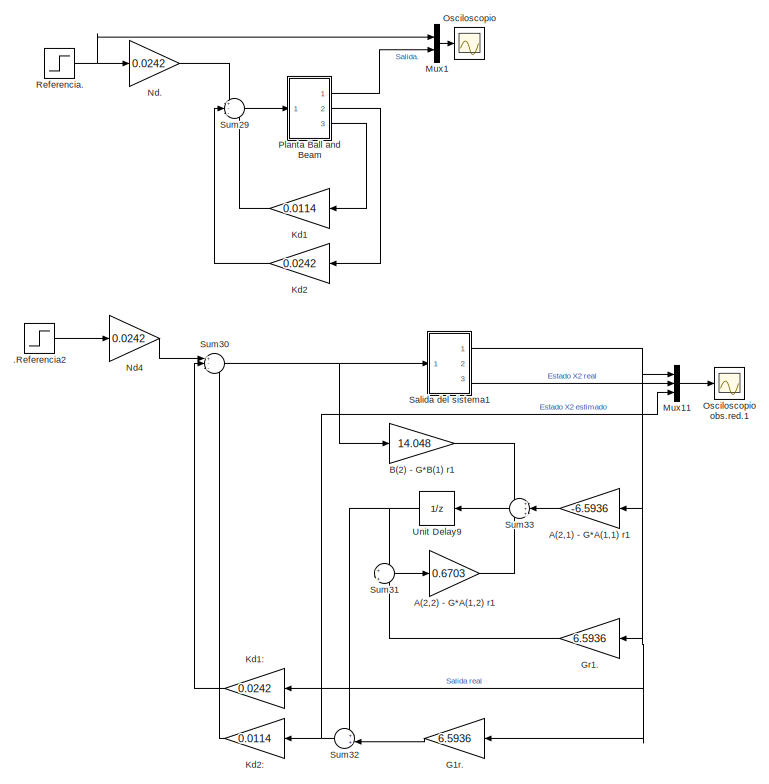
[diagram: root canvas - part 1/5, top center region]
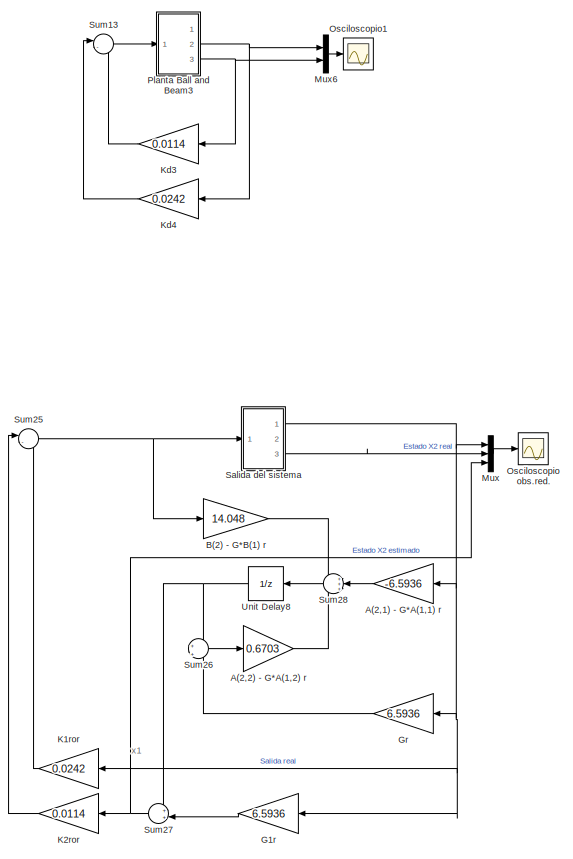
[diagram: root canvas - part 2/5, top left region]
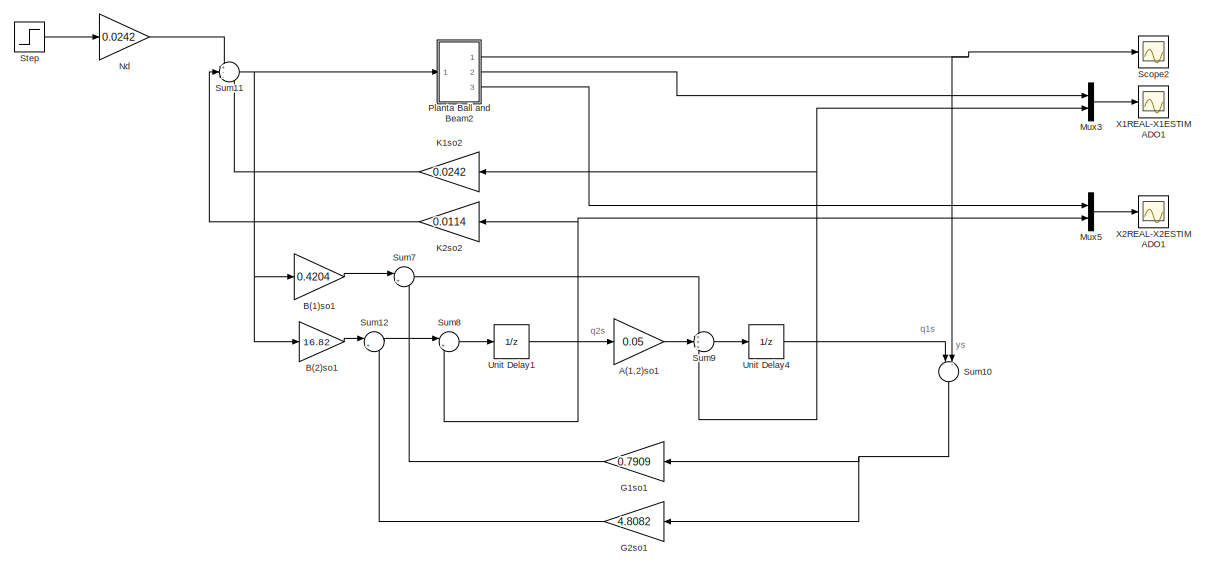
[diagram: root canvas - part 3/5, middle right region]
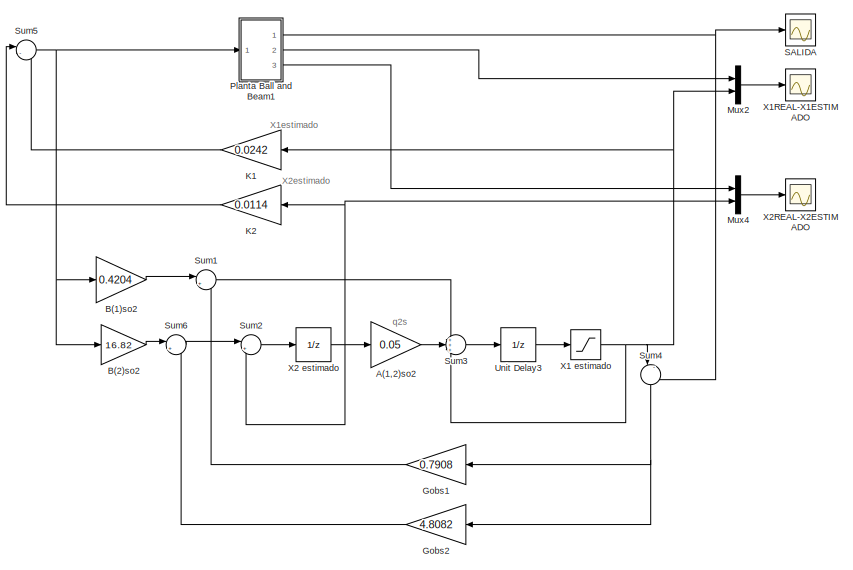
[diagram: root canvas - part 4/5, middle left region]
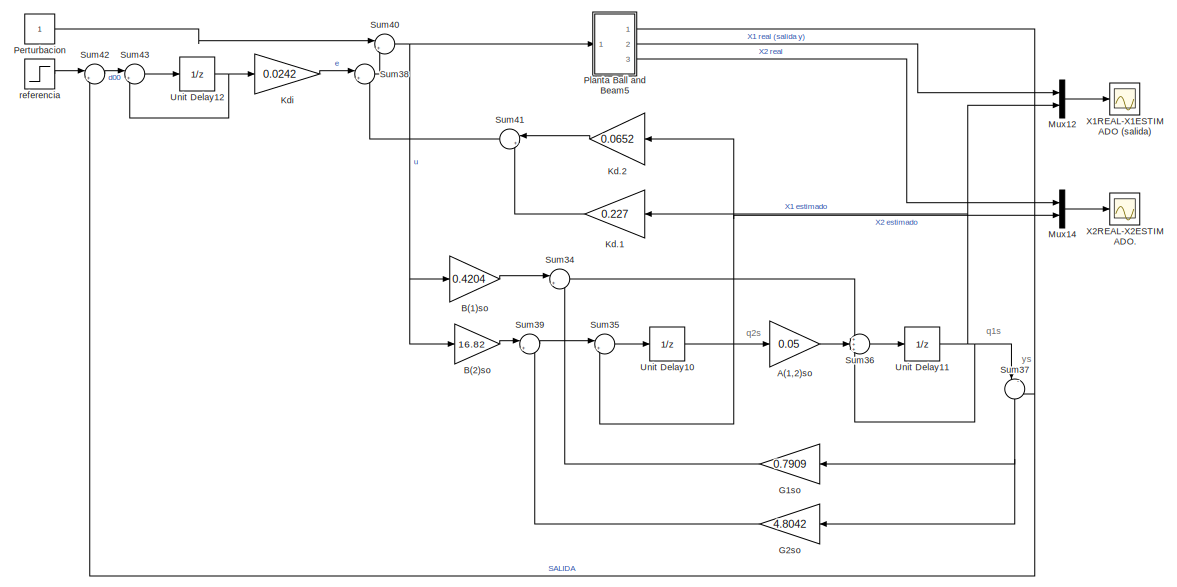
[diagram: root canvas - part 5/5, bottom right region]
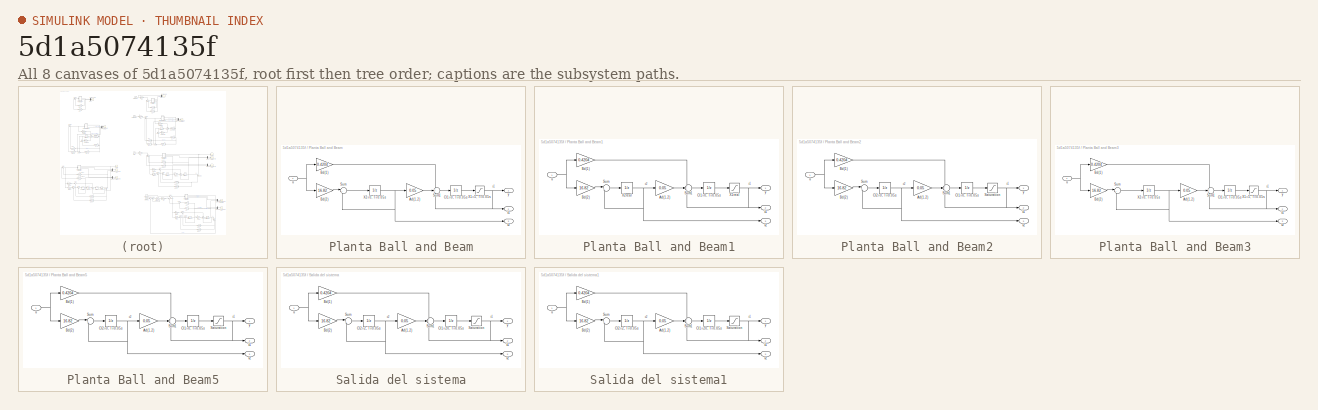
[diagram: thumbnail index - all 8 canvases of the model, root first then tree order]
MODEL slx_5d1a5074135f
KIND model
BLOCK [Step] .Referencia2
  After = 20
  Time = 0
BLOCK [Gain] A(1,2)so
  Gain = 0.05
  OutDataTypeStr = Inherit: Inherit via internal rule
  ParamDataTypeStr = Inherit: Inherit via internal rule
  SaturateOnIntegerOverflow = off
BLOCK [Gain] A(1,2)so1
  Gain = 0.05
  OutDataTypeStr = Inherit: Inherit via internal rule
  ParamDataTypeStr = Inherit: Inherit via internal rule
  SaturateOnIntegerOverflow = off
BLOCK [Gain] A(1,2)so2
  Gain = 0.05
  OutDataTypeStr = Inherit: Inherit via internal rule
  ParamDataTypeStr = Inherit: Inherit via internal rule
  SaturateOnIntegerOverflow = off
BLOCK [Gain] A(2,1) - G*A(1,1) r
  Gain = -6.5936
  OutDataTypeStr = Inherit: Inherit via internal rule
  ParamDataTypeStr = Inherit: Inherit via internal rule
  SaturateOnIntegerOverflow = off
BLOCK [Gain] A(2,1) - G*A(1,1) r1
  Gain = -6.5936
  OutDataTypeStr = Inherit: Inherit via internal rule
  ParamDataTypeStr = Inherit: Inherit via internal rule
  SaturateOnIntegerOverflow = off
BLOCK [Gain] A(2,2) - G*A(1,2) r
  Gain = 0.6703
  OutDataTypeStr = Inherit: Inherit via internal rule
  ParamDataTypeStr = Inherit: Inherit via internal rule
  SaturateOnIntegerOverflow = off
BLOCK [Gain] A(2,2) - G*A(1,2) r1
  Gain = 0.6703
  OutDataTypeStr = Inherit: Inherit via internal rule
  ParamDataTypeStr = Inherit: Inherit via internal rule
  SaturateOnIntegerOverflow = off
BLOCK [Gain] B(1)so
  Gain = 0.4204
  OutDataTypeStr = Inherit: Inherit via internal rule
  ParamDataTypeStr = Inherit: Inherit via internal rule
  SaturateOnIntegerOverflow = off
BLOCK [Gain] B(1)so1
  Gain = 0.4204
  OutDataTypeStr = Inherit: Inherit via internal rule
  ParamDataTypeStr = Inherit: Inherit via internal rule
  SaturateOnIntegerOverflow = off
BLOCK [Gain] B(1)so2
  Gain = 0.4204
  OutDataTypeStr = Inherit: Inherit via internal rule
  ParamDataTypeStr = Inherit: Inherit via internal rule
  SaturateOnIntegerOverflow = off
BLOCK [Gain] B(2) - G*B(1) r
  Gain = 14.048
  OutDataTypeStr = Inherit: Inherit via internal rule
  ParamDataTypeStr = Inherit: Inherit via internal rule
  SaturateOnIntegerOverflow = off
BLOCK [Gain] B(2) - G*B(1) r1
  Gain = 14.048
  OutDataTypeStr = Inherit: Inherit via internal rule
  ParamDataTypeStr = Inherit: Inherit via internal rule
  SaturateOnIntegerOverflow = off
BLOCK [Gain] B(2)so
  Gain = 16.82
  OutDataTypeStr = Inherit: Inherit via internal rule
  ParamDataTypeStr = Inherit: Inherit via internal rule
  SaturateOnIntegerOverflow = off
BLOCK [Gain] B(2)so1
  Gain = 16.82
  OutDataTypeStr = Inherit: Inherit via internal rule
  ParamDataTypeStr = Inherit: Inherit via internal rule
  SaturateOnIntegerOverflow = off
BLOCK [Gain] B(2)so2
  Gain = 16.82
  OutDataTypeStr = Inherit: Inherit via internal rule
  ParamDataTypeStr = Inherit: Inherit via internal rule
  SaturateOnIntegerOverflow = off
BLOCK [Gain] G1r
  Gain = 6.5936
  OutDataTypeStr = Inherit: Inherit via internal rule
  ParamDataTypeStr = Inherit: Inherit via internal rule
  SaturateOnIntegerOverflow = off
BLOCK [Gain] G1r.
  Gain = 6.5936
  OutDataTypeStr = Inherit: Inherit via internal rule
  ParamDataTypeStr = Inherit: Inherit via internal rule
  SaturateOnIntegerOverflow = off
BLOCK [Gain] G1so
  Gain = 0.7909
  OutDataTypeStr = Inherit: Inherit via internal rule
  ParamDataTypeStr = Inherit: Inherit via internal rule
  SaturateOnIntegerOverflow = off
BLOCK [Gain] G1so1
  Gain = 0.7909
  OutDataTypeStr = Inherit: Inherit via internal rule
  ParamDataTypeStr = Inherit: Inherit via internal rule
  SaturateOnIntegerOverflow = off
BLOCK [Gain] G2so
  Gain = 4.8042
  OutDataTypeStr = Inherit: Inherit via internal rule
  ParamDataTypeStr = Inherit: Inherit via internal rule
  SaturateOnIntegerOverflow = off
BLOCK [Gain] G2so1
  Gain = 4.8082
  OutDataTypeStr = Inherit: Inherit via internal rule
  ParamDataTypeStr = Inherit: Inherit via internal rule
  SaturateOnIntegerOverflow = off
BLOCK [Gain] Gobs1
  Gain = 0.7908
  OutDataTypeStr = Inherit: Inherit via internal rule
  ParamDataTypeStr = Inherit: Inherit via internal rule
  SaturateOnIntegerOverflow = off
BLOCK [Gain] Gobs2
  Gain = 4.8082
  OutDataTypeStr = Inherit: Inherit via internal rule
  ParamDataTypeStr = Inherit: Inherit via internal rule
  SaturateOnIntegerOverflow = off
BLOCK [Gain] Gr
  Gain = 6.5936
  OutDataTypeStr = Inherit: Inherit via internal rule
  ParamDataTypeStr = Inherit: Inherit via internal rule
  SaturateOnIntegerOverflow = off
BLOCK [Gain] Gr1.
  Gain = 6.5936
  OutDataTypeStr = Inherit: Inherit via internal rule
  ParamDataTypeStr = Inherit: Inherit via internal rule
  SaturateOnIntegerOverflow = off
BLOCK [Gain] K1
  Gain = 0.0242
  OutDataTypeStr = Inherit: Inherit via internal rule
  ParamDataTypeStr = Inherit: Inherit via internal rule
  SaturateOnIntegerOverflow = off
BLOCK [Gain] K1ror
  Gain = 0.0242
  OutDataTypeStr = Inherit: Inherit via internal rule
  ParamDataTypeStr = Inherit: Inherit via internal rule
  SaturateOnIntegerOverflow = off
BLOCK [Gain] K1so2
  Gain = 0.0242
  OutDataTypeStr = Inherit: Inherit via internal rule
  ParamDataTypeStr = Inherit: Inherit via internal rule
  SaturateOnIntegerOverflow = off
BLOCK [Gain] K2
  Gain = 0.0114
  OutDataTypeStr = Inherit: Inherit via internal rule
  ParamDataTypeStr = Inherit: Inherit via internal rule
  SaturateOnIntegerOverflow = off
BLOCK [Gain] K2ror
  Gain = 0.0114
  OutDataTypeStr = Inherit: Inherit via internal rule
  ParamDataTypeStr = Inherit: Inherit via internal rule
  SaturateOnIntegerOverflow = off
BLOCK [Gain] K2so2
  Gain = 0.0114
  OutDataTypeStr = Inherit: Inherit via internal rule
  ParamDataTypeStr = Inherit: Inherit via internal rule
  SaturateOnIntegerOverflow = off
BLOCK [Gain] Kd.1
  Gain = 0.227
  OutDataTypeStr = Inherit: Inherit via internal rule
  ParamDataTypeStr = Inherit: Inherit via internal rule
  SaturateOnIntegerOverflow = off
BLOCK [Gain] Kd.2
  Gain = 0.0652
  OutDataTypeStr = Inherit: Inherit via internal rule
  ParamDataTypeStr = Inherit: Inherit via internal rule
  SaturateOnIntegerOverflow = off
BLOCK [Gain] Kd1
  Gain = 0.0114
  OutDataTypeStr = Inherit: Inherit via internal rule
  ParamDataTypeStr = Inherit: Inherit via internal rule
  SaturateOnIntegerOverflow = off
BLOCK [Gain] Kd1:
  Gain = 0.0242
  OutDataTypeStr = Inherit: Inherit via internal rule
  ParamDataTypeStr = Inherit: Inherit via internal rule
  SaturateOnIntegerOverflow = off
BLOCK [Gain] Kd2
  Gain = 0.0242
  OutDataTypeStr = Inherit: Inherit via internal rule
  ParamDataTypeStr = Inherit: Inherit via internal rule
  SaturateOnIntegerOverflow = off
BLOCK [Gain] Kd2:
  Gain = 0.0114
  OutDataTypeStr = Inherit: Inherit via internal rule
  ParamDataTypeStr = Inherit: Inherit via internal rule
  SaturateOnIntegerOverflow = off
BLOCK [Gain] Kd3
  Gain = 0.0114
  OutDataTypeStr = Inherit: Inherit via internal rule
  ParamDataTypeStr = Inherit: Inherit via internal rule
  SaturateOnIntegerOverflow = off
BLOCK [Gain] Kd4
  Gain = 0.0242
  OutDataTypeStr = Inherit: Inherit via internal rule
  ParamDataTypeStr = Inherit: Inherit via internal rule
  SaturateOnIntegerOverflow = off
BLOCK [Gain] Kdi
  Gain = 0.0242
  OutDataTypeStr = Inherit: Inherit via internal rule
  ParamDataTypeStr = Inherit: Inherit via internal rule
  SaturateOnIntegerOverflow = off
BLOCK [Mux] Mux
  DisplayOption = bar
  Inputs = 3
  Ports = [3, 1]
BLOCK [Mux] Mux1
  DisplayOption = bar
  Inputs = 2
  Ports = [2, 1]
BLOCK [Mux] Mux11
  DisplayOption = bar
  Inputs = 3
  Ports = [3, 1]
BLOCK [Mux] Mux12
  DisplayOption = bar
  Inputs = 2
  Ports = [2, 1]
BLOCK [Mux] Mux14
  DisplayOption = bar
  Inputs = 2
  Ports = [2, 1]
BLOCK [Mux] Mux2
  DisplayOption = bar
  Inputs = 2
  Ports = [2, 1]
BLOCK [Mux] Mux3
  DisplayOption = bar
  Inputs = 2
  Ports = [2, 1]
BLOCK [Mux] Mux4
  DisplayOption = bar
  Inputs = 2
  Ports = [2, 1]
BLOCK [Mux] Mux5
  DisplayOption = bar
  Inputs = 2
  Ports = [2, 1]
BLOCK [Mux] Mux6
  DisplayOption = bar
  Inputs = 2
  Ports = [2, 1]
BLOCK [Gain] Nd
  Gain = 0.0242
  OutDataTypeStr = Inherit: Inherit via internal rule
  ParamDataTypeStr = Inherit: Inherit via internal rule
  SaturateOnIntegerOverflow = off
BLOCK [Gain] Nd.
  Gain = 0.0242
  OutDataTypeStr = Inherit: Inherit via internal rule
  ParamDataTypeStr = Inherit: Inherit via internal rule
  SaturateOnIntegerOverflow = off
BLOCK [Gain] Nd4
  Gain = 0.0242
  OutDataTypeStr = Inherit: Inherit via internal rule
  ParamDataTypeStr = Inherit: Inherit via internal rule
  SaturateOnIntegerOverflow = off
BLOCK [Scope] Osciloscopio
  DataFormat = StructureWithTime
  Floating = off
  LegendLocations = 0.6944     0.44813    0.070625    0.044444
  NumInputPorts = 1
  Ports = [1]
  SampleTime = 0
  SaveName = ScopeData2
  ShowLegends = on
  YMax = 25
  YMin = -30
BLOCK [Scope] Osciloscopio obs.red.
  DataFormat = StructureWithTime
  Floating = off
  LegendLocations = 0.6807     0.74452       0.095    0.063786
  NumInputPorts = 1
  Ports = [1]
  SampleTime = 0
  SaveName = ScopeData14
  ShowLegends = on
BLOCK [Scope] Osciloscopio obs.red.1
  DataFormat = StructureWithTime
  Floating = off
  NumInputPorts = 1
  Ports = [1]
  SampleTime = 0
  ShowLegends = on
BLOCK [Scope] Osciloscopio1
  DataFormat = StructureWithTime
  Floating = off
  LegendLocations = 0.6944     0.44813    0.070625    0.044444
  NumInputPorts = 1
  Ports = [1]
  SampleTime = 0
  SaveName = ScopeData8
  ShowLegends = on
  YMax = 25
  YMin = -30
BLOCK [Constant] Perturbacion
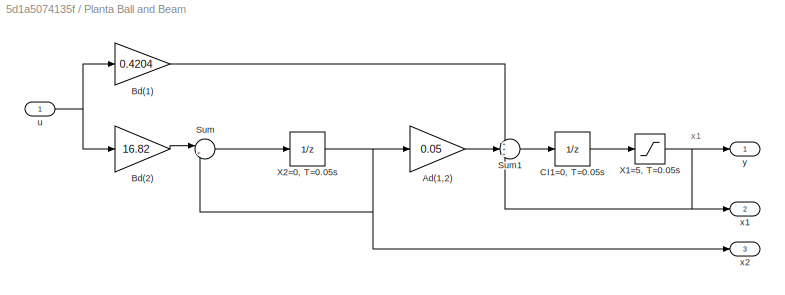
BLOCK [SubSystem] Planta Ball and Beam
  FunctionWithSeparateData = off
  MaskHideContents = off
  MinAlgLoopOccurrences = off
  Opaque = off
  Ports = [1, 3]
  PropExecContextOutsideSubsystem = off
  RTWSystemCode = Auto
  RequestExecContextInheritance = off
BLOCK [Gain] Planta Ball and Beam/Ad(1,2)
  Gain = 0.05
  OutDataTypeStr = Inherit: Inherit via internal rule
  ParamDataTypeStr = Inherit: Inherit via internal rule
  SaturateOnIntegerOverflow = off
BLOCK [Gain] Planta Ball and Beam/Bd(1)
  Gain = 0.4204
  OutDataTypeStr = Inherit: Inherit via internal rule
  ParamDataTypeStr = Inherit: Inherit via internal rule
  SaturateOnIntegerOverflow = off
BLOCK [Gain] Planta Ball and Beam/Bd(2)
  Gain = 16.82
  OutDataTypeStr = Inherit: Inherit via internal rule
  ParamDataTypeStr = Inherit: Inherit via internal rule
  SaturateOnIntegerOverflow = off
BLOCK [UnitDelay] Planta Ball and Beam/CI1=0, T=0.05s
  InitialCondition = 5
  InputProcessing = Elements as channels (sample based)
  SampleTime = 0.05
BLOCK [Sum] Planta Ball and Beam/Sum
  IconShape = round
  InputSameDT = off
  Inputs = |++
  OutDataTypeStr = Inherit: Inherit via internal rule
  Ports = [2, 1]
  SaturateOnIntegerOverflow = off
BLOCK [Sum] Planta Ball and Beam/Sum1
  IconShape = round
  InputSameDT = off
  Inputs = +++
  OutDataTypeStr = Inherit: Inherit via internal rule
  Ports = [3, 1]
  SaturateOnIntegerOverflow = off
BLOCK [Saturate] Planta Ball and Beam/X1=5, T=0.05s
  InputPortMap = u0
  LowerLimit = 5
  Ports = [1, 1]
  UpperLimit = 35
BLOCK [UnitDelay] Planta Ball and Beam/X2=0, T=0.05s
  InputProcessing = Elements as channels (sample based)
  SampleTime = 0.05
BLOCK [Inport] Planta Ball and Beam/u
  IconDisplay = Port number
BLOCK [Outport] Planta Ball and Beam/x1
  IconDisplay = Port number
  Port = 2
BLOCK [Outport] Planta Ball and Beam/x2
  IconDisplay = Port number
  Port = 3
BLOCK [Outport] Planta Ball and Beam/y
  IconDisplay = Port number
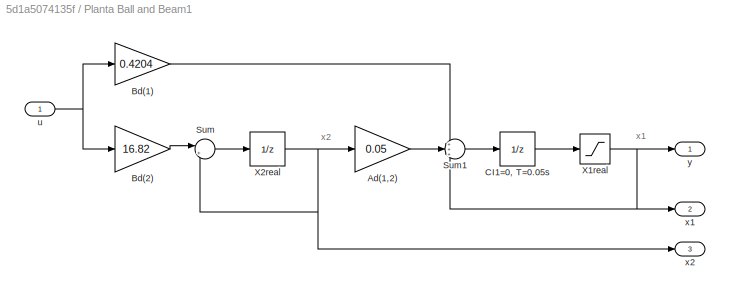
BLOCK [SubSystem] Planta Ball and Beam1
  FunctionWithSeparateData = off
  MaskHideContents = off
  MinAlgLoopOccurrences = off
  Opaque = off
  Ports = [1, 3]
  PropExecContextOutsideSubsystem = off
  RTWSystemCode = Auto
  RequestExecContextInheritance = off
BLOCK [Gain] Planta Ball and Beam1/Ad(1,2)
  Gain = 0.05
  OutDataTypeStr = Inherit: Inherit via internal rule
  ParamDataTypeStr = Inherit: Inherit via internal rule
  SaturateOnIntegerOverflow = off
BLOCK [Gain] Planta Ball and Beam1/Bd(1)
  Gain = 0.4204
  OutDataTypeStr = Inherit: Inherit via internal rule
  ParamDataTypeStr = Inherit: Inherit via internal rule
  SaturateOnIntegerOverflow = off
BLOCK [Gain] Planta Ball and Beam1/Bd(2)
  Gain = 16.82
  OutDataTypeStr = Inherit: Inherit via internal rule
  ParamDataTypeStr = Inherit: Inherit via internal rule
  SaturateOnIntegerOverflow = off
BLOCK [UnitDelay] Planta Ball and Beam1/CI1=0, T=0.05s
  InitialCondition = 5
  InputProcessing = Elements as channels (sample based)
  SampleTime = 0.05
BLOCK [Sum] Planta Ball and Beam1/Sum
  IconShape = round
  InputSameDT = off
  Inputs = |++
  OutDataTypeStr = Inherit: Inherit via internal rule
  Ports = [2, 1]
  SaturateOnIntegerOverflow = off
BLOCK [Sum] Planta Ball and Beam1/Sum1
  IconShape = round
  InputSameDT = off
  Inputs = +++
  OutDataTypeStr = Inherit: Inherit via internal rule
  Ports = [3, 1]
  SaturateOnIntegerOverflow = off
BLOCK [Saturate] Planta Ball and Beam1/X1real
  InputPortMap = u0
  LowerLimit = 5
  Ports = [1, 1]
  UpperLimit = 35
BLOCK [UnitDelay] Planta Ball and Beam1/X2real
  InitialCondition = 10
  InputProcessing = Elements as channels (sample based)
  SampleTime = 0.05
BLOCK [Inport] Planta Ball and Beam1/u
  IconDisplay = Port number
BLOCK [Outport] Planta Ball and Beam1/x1
  IconDisplay = Port number
  Port = 2
BLOCK [Outport] Planta Ball and Beam1/x2
  IconDisplay = Port number
  Port = 3
BLOCK [Outport] Planta Ball and Beam1/y
  IconDisplay = Port number
BLOCK [SubSystem] Planta Ball and Beam2
  FunctionWithSeparateData = off
  MaskHideContents = off
  MinAlgLoopOccurrences = off
  Opaque = off
  Ports = [1, 3]
  PropExecContextOutsideSubsystem = off
  RTWSystemCode = Auto
  RequestExecContextInheritance = off
BLOCK [Gain] Planta Ball and Beam2/Ad(1,2)
  Gain = 0.05
  OutDataTypeStr = Inherit: Inherit via internal rule
  ParamDataTypeStr = Inherit: Inherit via internal rule
  SaturateOnIntegerOverflow = off
BLOCK [Gain] Planta Ball and Beam2/Bd(1)
  Gain = 0.4204
  OutDataTypeStr = Inherit: Inherit via internal rule
  ParamDataTypeStr = Inherit: Inherit via internal rule
  SaturateOnIntegerOverflow = off
BLOCK [Gain] Planta Ball and Beam2/Bd(2)
  Gain = 16.82
  OutDataTypeStr = Inherit: Inherit via internal rule
  ParamDataTypeStr = Inherit: Inherit via internal rule
  SaturateOnIntegerOverflow = off
BLOCK [UnitDelay] Planta Ball and Beam2/CI1=0, T=0.05s
  InitialCondition = 5
  InputProcessing = Elements as channels (sample based)
  SampleTime = 0.05
BLOCK [UnitDelay] Planta Ball and Beam2/CI2=0, T=0.05s
  InputProcessing = Elements as channels (sample based)
  SampleTime = 0.05
BLOCK [Saturate] Planta Ball and Beam2/Saturation
  InputPortMap = u0
  LowerLimit = 5
  Ports = [1, 1]
  UpperLimit = 35
BLOCK [Sum] Planta Ball and Beam2/Sum
  IconShape = round
  InputSameDT = off
  Inputs = |++
  OutDataTypeStr = Inherit: Inherit via internal rule
  Ports = [2, 1]
  SaturateOnIntegerOverflow = off
BLOCK [Sum] Planta Ball and Beam2/Sum1
  IconShape = round
  InputSameDT = off
  Inputs = +++
  OutDataTypeStr = Inherit: Inherit via internal rule
  Ports = [3, 1]
  SaturateOnIntegerOverflow = off
BLOCK [Inport] Planta Ball and Beam2/u
  IconDisplay = Port number
BLOCK [Outport] Planta Ball and Beam2/x1
  IconDisplay = Port number
  Port = 2
BLOCK [Outport] Planta Ball and Beam2/x2
  IconDisplay = Port number
  Port = 3
BLOCK [Outport] Planta Ball and Beam2/y
  IconDisplay = Port number
BLOCK [SubSystem] Planta Ball and Beam3
  FunctionWithSeparateData = off
  MaskHideContents = off
  MinAlgLoopOccurrences = off
  Opaque = off
  Ports = [1, 3]
  PropExecContextOutsideSubsystem = off
  RTWSystemCode = Auto
  RequestExecContextInheritance = off
BLOCK [Gain] Planta Ball and Beam3/Ad(1,2)
  Gain = 0.05
  OutDataTypeStr = Inherit: Inherit via internal rule
  ParamDataTypeStr = Inherit: Inherit via internal rule
  SaturateOnIntegerOverflow = off
BLOCK [Gain] Planta Ball and Beam3/Bd(1)
  Gain = 0.4204
  OutDataTypeStr = Inherit: Inherit via internal rule
  ParamDataTypeStr = Inherit: Inherit via internal rule
  SaturateOnIntegerOverflow = off
BLOCK [Gain] Planta Ball and Beam3/Bd(2)
  Gain = 16.82
  OutDataTypeStr = Inherit: Inherit via internal rule
  ParamDataTypeStr = Inherit: Inherit via internal rule
  SaturateOnIntegerOverflow = off
BLOCK [UnitDelay] Planta Ball and Beam3/CI1=0, T=0.05s
  InitialCondition = 5
  InputProcessing = Elements as channels (sample based)
  SampleTime = 0.05
BLOCK [Sum] Planta Ball and Beam3/Sum
  IconShape = round
  InputSameDT = off
  Inputs = |++
  OutDataTypeStr = Inherit: Inherit via internal rule
  Ports = [2, 1]
  SaturateOnIntegerOverflow = off
BLOCK [Sum] Planta Ball and Beam3/Sum1
  IconShape = round
  InputSameDT = off
  Inputs = +++
  OutDataTypeStr = Inherit: Inherit via internal rule
  Ports = [3, 1]
  SaturateOnIntegerOverflow = off
BLOCK [Saturate] Planta Ball and Beam3/X1=5, T=0.05s
  InputPortMap = u0
  LowerLimit = 5
  Ports = [1, 1]
  UpperLimit = 35
BLOCK [UnitDelay] Planta Ball and Beam3/X2=0, T=0.05s
  InputProcessing = Elements as channels (sample based)
  SampleTime = 0.05
BLOCK [Inport] Planta Ball and Beam3/u
  IconDisplay = Port number
BLOCK [Outport] Planta Ball and Beam3/x1
  IconDisplay = Port number
  Port = 2
BLOCK [Outport] Planta Ball and Beam3/x2
  IconDisplay = Port number
  Port = 3
BLOCK [Outport] Planta Ball and Beam3/y
  IconDisplay = Port number
BLOCK [SubSystem] Planta Ball and Beam5
  FunctionWithSeparateData = off
  MaskHideContents = off
  MinAlgLoopOccurrences = off
  Opaque = off
  Ports = [1, 3]
  PropExecContextOutsideSubsystem = off
  RTWSystemCode = Auto
  RequestExecContextInheritance = off
BLOCK [Gain] Planta Ball and Beam5/Ad(1,2)
  Gain = 0.05
  OutDataTypeStr = Inherit: Inherit via internal rule
  ParamDataTypeStr = Inherit: Inherit via internal rule
  SaturateOnIntegerOverflow = off
BLOCK [Gain] Planta Ball and Beam5/Bd(1)
  Gain = 0.4204
  OutDataTypeStr = Inherit: Inherit via internal rule
  ParamDataTypeStr = Inherit: Inherit via internal rule
  SaturateOnIntegerOverflow = off
BLOCK [Gain] Planta Ball and Beam5/Bd(2)
  Gain = 16.82
  OutDataTypeStr = Inherit: Inherit via internal rule
  ParamDataTypeStr = Inherit: Inherit via internal rule
  SaturateOnIntegerOverflow = off
BLOCK [UnitDelay] Planta Ball and Beam5/CI1=0, T=0.05s
  InitialCondition = 5
  InputProcessing = Elements as channels (sample based)
  SampleTime = 0.05
BLOCK [UnitDelay] Planta Ball and Beam5/CI2=0, T=0.05s
  InputProcessing = Elements as channels (sample based)
  SampleTime = 0.05
BLOCK [Saturate] Planta Ball and Beam5/Saturation
  InputPortMap = u0
  LowerLimit = 5
  Ports = [1, 1]
  UpperLimit = 35
BLOCK [Sum] Planta Ball and Beam5/Sum
  IconShape = round
  InputSameDT = off
  Inputs = |++
  OutDataTypeStr = Inherit: Inherit via internal rule
  Ports = [2, 1]
  SaturateOnIntegerOverflow = off
BLOCK [Sum] Planta Ball and Beam5/Sum1
  IconShape = round
  InputSameDT = off
  Inputs = +++
  OutDataTypeStr = Inherit: Inherit via internal rule
  Ports = [3, 1]
  SaturateOnIntegerOverflow = off
BLOCK [Inport] Planta Ball and Beam5/u
  IconDisplay = Port number
BLOCK [Outport] Planta Ball and Beam5/x1
  IconDisplay = Port number
  Port = 2
BLOCK [Outport] Planta Ball and Beam5/x2
  IconDisplay = Port number
  Port = 3
BLOCK [Outport] Planta Ball and Beam5/y
  IconDisplay = Port number
BLOCK [Step] Referencia.
  After = 20
  Before = 5
  SampleTime = 0
  Time = 0
BLOCK [Scope] SALIDA
  DataFormat = StructureWithTime
  Floating = off
  NumInputPorts = 1
  Ports = [1]
  SampleTime = 0
  SaveName = ScopeData1
  ShowLegends = off
BLOCK [SubSystem] Salida del sistema
  FunctionWithSeparateData = off
  MaskHideContents = off
  MinAlgLoopOccurrences = off
  Opaque = off
  Ports = [1, 3]
  PropExecContextOutsideSubsystem = off
  RTWSystemCode = Auto
  RequestExecContextInheritance = off
BLOCK [Gain] Salida del sistema/Ad(1,2)
  Gain = 0.05
  OutDataTypeStr = Inherit: Inherit via internal rule
  ParamDataTypeStr = Inherit: Inherit via internal rule
  SaturateOnIntegerOverflow = off
BLOCK [Gain] Salida del sistema/Bd(1)
  Gain = 0.4204
  OutDataTypeStr = Inherit: Inherit via internal rule
  ParamDataTypeStr = Inherit: Inherit via internal rule
  SaturateOnIntegerOverflow = off
BLOCK [Gain] Salida del sistema/Bd(2)
  Gain = 16.82
  OutDataTypeStr = Inherit: Inherit via internal rule
  ParamDataTypeStr = Inherit: Inherit via internal rule
  SaturateOnIntegerOverflow = off
BLOCK [UnitDelay] Salida del sistema/CI1=20, T=0.05s
  InitialCondition = 20
  InputProcessing = Elements as channels (sample based)
  SampleTime = 0.05
BLOCK [UnitDelay] Salida del sistema/CI2=2, T=0.05s
  InitialCondition = 100
  InputProcessing = Elements as channels (sample based)
  SampleTime = 0.05
BLOCK [Saturate] Salida del sistema/Saturation
  InputPortMap = u0
  LowerLimit = 5
  Ports = [1, 1]
  UpperLimit = 35
BLOCK [Sum] Salida del sistema/Sum
  IconShape = round
  InputSameDT = off
  Inputs = |++
  OutDataTypeStr = Inherit: Inherit via internal rule
  Ports = [2, 1]
  SaturateOnIntegerOverflow = off
BLOCK [Sum] Salida del sistema/Sum1
  IconShape = round
  InputSameDT = off
  Inputs = +++
  OutDataTypeStr = Inherit: Inherit via internal rule
  Ports = [3, 1]
  SaturateOnIntegerOverflow = off
BLOCK [Inport] Salida del sistema/u
  IconDisplay = Port number
BLOCK [Outport] Salida del sistema/x1
  IconDisplay = Port number
  Port = 2
BLOCK [Outport] Salida del sistema/x2
  IconDisplay = Port number
  Port = 3
BLOCK [Outport] Salida del sistema/y
  IconDisplay = Port number
BLOCK [SubSystem] Salida del sistema1
  FunctionWithSeparateData = off
  MaskHideContents = off
  MinAlgLoopOccurrences = off
  Opaque = off
  Ports = [1, 3]
  PropExecContextOutsideSubsystem = off
  RTWSystemCode = Auto
  RequestExecContextInheritance = off
BLOCK [Gain] Salida del sistema1/Ad(1,2)
  Gain = 0.05
  OutDataTypeStr = Inherit: Inherit via internal rule
  ParamDataTypeStr = Inherit: Inherit via internal rule
  SaturateOnIntegerOverflow = off
BLOCK [Gain] Salida del sistema1/Bd(1)
  Gain = 0.4204
  OutDataTypeStr = Inherit: Inherit via internal rule
  ParamDataTypeStr = Inherit: Inherit via internal rule
  SaturateOnIntegerOverflow = off
BLOCK [Gain] Salida del sistema1/Bd(2)
  Gain = 16.82
  OutDataTypeStr = Inherit: Inherit via internal rule
  ParamDataTypeStr = Inherit: Inherit via internal rule
  SaturateOnIntegerOverflow = off
BLOCK [UnitDelay] Salida del sistema1/CI1=20, T=0.05s
  InitialCondition = 5
  InputProcessing = Elements as channels (sample based)
  SampleTime = 0.05
BLOCK [UnitDelay] Salida del sistema1/CI2=2, T=0.05s
  InputProcessing = Elements as channels (sample based)
  SampleTime = 0.05
BLOCK [Saturate] Salida del sistema1/Saturation
  InputPortMap = u0
  LowerLimit = 5
  Ports = [1, 1]
  UpperLimit = 35
BLOCK [Sum] Salida del sistema1/Sum
  IconShape = round
  InputSameDT = off
  Inputs = |++
  OutDataTypeStr = Inherit: Inherit via internal rule
  Ports = [2, 1]
  SaturateOnIntegerOverflow = off
BLOCK [Sum] Salida del sistema1/Sum1
  IconShape = round
  InputSameDT = off
  Inputs = +++
  OutDataTypeStr = Inherit: Inherit via internal rule
  Ports = [3, 1]
  SaturateOnIntegerOverflow = off
BLOCK [Inport] Salida del sistema1/u
  IconDisplay = Port number
BLOCK [Outport] Salida del sistema1/x1
  IconDisplay = Port number
  Port = 2
BLOCK [Outport] Salida del sistema1/x2
  IconDisplay = Port number
  Port = 3
BLOCK [Outport] Salida del sistema1/y
  IconDisplay = Port number
BLOCK [Scope] Scope2
  DataFormat = StructureWithTime
  Floating = off
  NumInputPorts = 1
  Ports = [1]
  SampleTime = 0
  SaveName = ScopeData5
  ShowLegends = off
BLOCK [Step] Step
  After = 20
  SampleTime = 0
  Time = 0
BLOCK [Sum] Sum1
  IconShape = round
  InputSameDT = off
  Inputs = |++
  OutDataTypeStr = Inherit: Inherit via internal rule
  Ports = [2, 1]
  SaturateOnIntegerOverflow = off
BLOCK [Sum] Sum10
  IconShape = round
  InputSameDT = off
  Inputs = |-+
  OutDataTypeStr = Inherit: Inherit via internal rule
  Ports = [2, 1]
  SaturateOnIntegerOverflow = off
BLOCK [Sum] Sum11
  IconShape = round
  InputSameDT = off
  Inputs = +--
  OutDataTypeStr = Inherit: Inherit via internal rule
  Ports = [3, 1]
  SaturateOnIntegerOverflow = off
BLOCK [Sum] Sum12
  IconShape = round
  InputSameDT = off
  Inputs = |++
  OutDataTypeStr = Inherit: Inherit via internal rule
  Ports = [2, 1]
  SaturateOnIntegerOverflow = off
BLOCK [Sum] Sum13
  IconShape = round
  InputSameDT = off
  Inputs = |--
  OutDataTypeStr = Inherit: Inherit via internal rule
  Ports = [2, 1]
  SaturateOnIntegerOverflow = off
BLOCK [Sum] Sum2
  IconShape = round
  InputSameDT = off
  Inputs = |++
  OutDataTypeStr = Inherit: Inherit via internal rule
  Ports = [2, 1]
  SaturateOnIntegerOverflow = off
BLOCK [Sum] Sum25
  IconShape = round
  InputSameDT = off
  Inputs = |--
  OutDataTypeStr = Inherit: Inherit via internal rule
  Ports = [2, 1]
  SaturateOnIntegerOverflow = off
BLOCK [Sum] Sum26
  IconShape = round
  InputSameDT = off
  Inputs = +|+
  OutDataTypeStr = Inherit: Inherit via internal rule
  Ports = [2, 1]
  SaturateOnIntegerOverflow = off
BLOCK [Sum] Sum27
  IconShape = round
  InputSameDT = off
  Inputs = ++|
  OutDataTypeStr = Inherit: Inherit via internal rule
  Ports = [2, 1]
  SaturateOnIntegerOverflow = off
BLOCK [Sum] Sum28
  IconShape = round
  InputSameDT = off
  Inputs = +++
  OutDataTypeStr = Inherit: Inherit via internal rule
  Ports = [3, 1]
  SaturateOnIntegerOverflow = off
BLOCK [Sum] Sum29
  IconShape = round
  InputSameDT = off
  Inputs = +--
  OutDataTypeStr = Inherit: Inherit via internal rule
  Ports = [3, 1]
  SaturateOnIntegerOverflow = off
BLOCK [Sum] Sum3
  IconShape = round
  InputSameDT = off
  Inputs = +++
  OutDataTypeStr = Inherit: Inherit via internal rule
  Ports = [3, 1]
  SaturateOnIntegerOverflow = off
BLOCK [Sum] Sum30
  IconShape = round
  InputSameDT = off
  Inputs = +--
  OutDataTypeStr = Inherit: Inherit via internal rule
  Ports = [3, 1]
  SaturateOnIntegerOverflow = off
BLOCK [Sum] Sum31
  IconShape = round
  InputSameDT = off
  Inputs = +|+
  OutDataTypeStr = Inherit: Inherit via internal rule
  Ports = [2, 1]
  SaturateOnIntegerOverflow = off
BLOCK [Sum] Sum32
  IconShape = round
  InputSameDT = off
  Inputs = ++|
  OutDataTypeStr = Inherit: Inherit via internal rule
  Ports = [2, 1]
  SaturateOnIntegerOverflow = off
BLOCK [Sum] Sum33
  IconShape = round
  InputSameDT = off
  Inputs = +++
  OutDataTypeStr = Inherit: Inherit via internal rule
  Ports = [3, 1]
  SaturateOnIntegerOverflow = off
BLOCK [Sum] Sum34
  IconShape = round
  InputSameDT = off
  Inputs = |++
  OutDataTypeStr = Inherit: Inherit via internal rule
  Ports = [2, 1]
  SaturateOnIntegerOverflow = off
BLOCK [Sum] Sum35
  IconShape = round
  InputSameDT = off
  Inputs = |++
  OutDataTypeStr = Inherit: Inherit via internal rule
  Ports = [2, 1]
  SaturateOnIntegerOverflow = off
BLOCK [Sum] Sum36
  IconShape = round
  InputSameDT = off
  Inputs = +++
  OutDataTypeStr = Inherit: Inherit via internal rule
  Ports = [3, 1]
  SaturateOnIntegerOverflow = off
BLOCK [Sum] Sum37
  IconShape = round
  InputSameDT = off
  Inputs = |-+
  OutDataTypeStr = Inherit: Inherit via internal rule
  Ports = [2, 1]
  SaturateOnIntegerOverflow = off
BLOCK [Sum] Sum38
  IconShape = round
  InputSameDT = off
  Inputs = |+-
  OutDataTypeStr = Inherit: Inherit via internal rule
  Ports = [2, 1]
  SaturateOnIntegerOverflow = off
BLOCK [Sum] Sum39
  IconShape = round
  InputSameDT = off
  Inputs = |++
  OutDataTypeStr = Inherit: Inherit via internal rule
  Ports = [2, 1]
  SaturateOnIntegerOverflow = off
BLOCK [Sum] Sum4
  IconShape = round
  InputSameDT = off
  Inputs = |-+
  OutDataTypeStr = Inherit: Inherit via internal rule
  Ports = [2, 1]
  SaturateOnIntegerOverflow = off
BLOCK [Sum] Sum40
  IconShape = round
  InputSameDT = off
  Inputs = |++
  OutDataTypeStr = Inherit: Inherit via internal rule
  Ports = [2, 1]
  SaturateOnIntegerOverflow = off
BLOCK [Sum] Sum41
  IconShape = round
  InputSameDT = off
  Inputs = |++
  OutDataTypeStr = Inherit: Inherit via internal rule
  Ports = [2, 1]
  SaturateOnIntegerOverflow = off
BLOCK [Sum] Sum42
  IconShape = round
  InputSameDT = off
  Inputs = |+-
  OutDataTypeStr = Inherit: Inherit via internal rule
  Ports = [2, 1]
  SaturateOnIntegerOverflow = off
BLOCK [Sum] Sum43
  IconShape = round
  InputSameDT = off
  Inputs = |++
  OutDataTypeStr = Inherit: Inherit via internal rule
  Ports = [2, 1]
  SaturateOnIntegerOverflow = off
BLOCK [Sum] Sum5
  IconShape = round
  InputSameDT = off
  Inputs = |--
  OutDataTypeStr = Inherit: Inherit via internal rule
  Ports = [2, 1]
  SaturateOnIntegerOverflow = off
BLOCK [Sum] Sum6
  IconShape = round
  InputSameDT = off
  Inputs = |++
  OutDataTypeStr = Inherit: Inherit via internal rule
  Ports = [2, 1]
  SaturateOnIntegerOverflow = off
BLOCK [Sum] Sum7
  IconShape = round
  InputSameDT = off
  Inputs = |++
  OutDataTypeStr = Inherit: Inherit via internal rule
  Ports = [2, 1]
  SaturateOnIntegerOverflow = off
BLOCK [Sum] Sum8
  IconShape = round
  InputSameDT = off
  Inputs = |++
  OutDataTypeStr = Inherit: Inherit via internal rule
  Ports = [2, 1]
  SaturateOnIntegerOverflow = off
BLOCK [Sum] Sum9
  IconShape = round
  InputSameDT = off
  Inputs = +++
  OutDataTypeStr = Inherit: Inherit via internal rule
  Ports = [3, 1]
  SaturateOnIntegerOverflow = off
BLOCK [UnitDelay] Unit Delay1
  InputProcessing = Elements as channels (sample based)
  SampleTime = 0.05
BLOCK [UnitDelay] Unit Delay10
  InitialCondition = 5
  InputProcessing = Elements as channels (sample based)
  SampleTime = 0.05
BLOCK [UnitDelay] Unit Delay11
  InitialCondition = 6
  InputProcessing = Elements as channels (sample based)
  SampleTime = 0.05
BLOCK [UnitDelay] Unit Delay12
  InputProcessing = Elements as channels (sample based)
  SampleTime = 0.05
BLOCK [UnitDelay] Unit Delay3
  InitialCondition = 5
  InputProcessing = Elements as channels (sample based)
  SampleTime = 0.05
BLOCK [UnitDelay] Unit Delay4
  InitialCondition = 5
  InputProcessing = Elements as channels (sample based)
  SampleTime = 0.05
BLOCK [UnitDelay] Unit Delay8
  InputProcessing = Elements as channels (sample based)
  SampleTime = 0.05
BLOCK [UnitDelay] Unit Delay9
  InputProcessing = Elements as channels (sample based)
  SampleTime = 0.05
BLOCK [Saturate] X1 estimado
  InputPortMap = u0
  LowerLimit = 5
  Ports = [1, 1]
  UpperLimit = 35
BLOCK [Scope] X1REAL-X1ESTIMADO
  DataFormat = StructureWithTime
  Floating = off
  LegendLocations = 0.28655     0.44553      0.4411     0.11765
  NumInputPorts = 1
  Ports = [1]
  SampleTime = 0
  SaveName = ScopeData3
  ShowLegends = on
BLOCK [Scope] X1REAL-X1ESTIMADO (salida)
  DataFormat = StructureWithTime
  Floating = off
  LegendLocations = 0.57759     0.66722     0.30269     0.10465
  NumInputPorts = 1
  Ports = [1]
  SampleTime = 0
  SaveName = ScopeData15
  ShowLegends = on
BLOCK [Scope] X1REAL-X1ESTIMADO1
  DataFormat = StructureWithTime
  Floating = off
  NumInputPorts = 1
  Ports = [1]
  SampleTime = 0
  SaveName = ScopeData6
  ShowLegends = off
BLOCK [UnitDelay] X2 estimado
  InitialCondition = 7
  InputProcessing = Elements as channels (sample based)
  SampleTime = 0.05
BLOCK [Scope] X2REAL-X2ESTIMADO
  DataFormat = StructureWithTime
  Floating = off
  LegendLocations = 0.54334     0.64343     0.31884    0.086538
  NumInputPorts = 1
  Ports = [1]
  SampleTime = 0
  SaveName = ScopeData4
  ShowLegends = on
BLOCK [Scope] X2REAL-X2ESTIMADO.
  DataFormat = StructureWithTime
  Floating = off
  LegendLocations = 0.58868     0.67106     0.25439    0.096515
  NumInputPorts = 1
  Ports = [1]
  SampleTime = 0
  SaveName = ScopeData17
  ShowLegends = on
BLOCK [Scope] X2REAL-X2ESTIMADO1
  DataFormat = StructureWithTime
  Floating = off
  NumInputPorts = 1
  Ports = [1]
  SampleTime = 0
  SaveName = ScopeData7
  ShowLegends = off
BLOCK [Step] referencia 
  After = 20
  SampleTime = 0
  Time = 0
ANNOTATION (root): X1estimado
ANNOTATION (root): X2estimado
ANNOTATION (root): q1s
ANNOTATION (root): q2s
ANNOTATION (root): x1
ANNOTATION (root): ys
ANNOTATION Planta Ball and Beam: x1
ANNOTATION Planta Ball and Beam1: x1
ANNOTATION Planta Ball and Beam1: x2
ANNOTATION Planta Ball and Beam2: x1
ANNOTATION Planta Ball and Beam2: x2
ANNOTATION Planta Ball and Beam3: x1
ANNOTATION Planta Ball and Beam5: x1
ANNOTATION Planta Ball and Beam5: x2
ANNOTATION Salida del sistema: x1
ANNOTATION Salida del sistema: x2
ANNOTATION Salida del sistema1: x1
ANNOTATION Salida del sistema1: x2
LINE .Referencia2:1 -> Nd4:1
LINE A(1,2)so1:1 -> Sum9:2
LINE A(1,2)so2:1 -> Sum3:2
LINE A(1,2)so:1 -> Sum36:2
LINE A(2,1) - G*A(1,1) r1:1 -> Sum33:2
LINE A(2,1) - G*A(1,1) r:1 -> Sum28:2
LINE A(2,2) - G*A(1,2) r1:1 -> Sum33:3
LINE A(2,2) - G*A(1,2) r:1 -> Sum28:3
LINE B(1)so1:1 -> Sum7:1
LINE B(1)so2:1 -> Sum1:1
LINE B(1)so:1 -> Sum34:1
LINE B(2) - G*B(1) r1:1 -> Sum33:1
LINE B(2) - G*B(1) r:1 -> Sum28:1
LINE B(2)so1:1 -> Sum12:1
LINE B(2)so2:1 -> Sum6:1
LINE B(2)so:1 -> Sum39:1
LINE G1r.:1 -> Sum32:2
LINE G1r:1 -> Sum27:2
LINE G1so1:1 -> Sum7:2
LINE G1so:1 -> Sum34:2
LINE G2so1:1 -> Sum12:2
LINE G2so:1 -> Sum39:2
LINE Gobs1:1 -> Sum1:2
LINE Gobs2:1 -> Sum6:2
LINE Gr1.:1 -> Sum31:2
LINE Gr:1 -> Sum26:2
LINE K1:1 -> Sum5:2
LINE K1ror:1 -> Sum25:2
LINE K1so2:1 -> Sum11:3
LINE K2:1 -> Sum5:1
LINE K2ror:1 -> Sum25:1
LINE K2so2:1 -> Sum11:2
LINE Kd.1:1 -> Sum41:2
LINE Kd.2:1 -> Sum41:1
LINE Kd1:1 -> Sum29:3
LINE Kd1::1 -> Sum30:2
LINE Kd2:1 -> Sum29:2
LINE Kd2::1 -> Sum30:3
LINE Kd3:1 -> Sum13:2
LINE Kd4:1 -> Sum13:1
LINE Kdi:1 -> Sum38:1
LINE Mux11:1 -> Osciloscopio obs.red.1:1
LINE Mux12:1 -> X1REAL-X1ESTIMADO (salida):1
LINE Mux14:1 -> X2REAL-X2ESTIMADO.:1
LINE Mux1:1 -> Osciloscopio:1
LINE Mux2:1 -> X1REAL-X1ESTIMADO:1
LINE Mux3:1 -> X1REAL-X1ESTIMADO1:1
LINE Mux4:1 -> X2REAL-X2ESTIMADO:1
LINE Mux5:1 -> X2REAL-X2ESTIMADO1:1
LINE Mux6:1 -> Osciloscopio1:1
LINE Mux:1 -> Osciloscopio obs.red.:1
LINE Nd.:1 -> Sum29:1
LINE Nd4:1 -> Sum30:1
LINE Nd:1 -> Sum11:1
LINE Perturbacion:1 -> Sum40:1
LINE Planta Ball and Beam/Ad(1,2):1 -> Planta Ball and Beam/Sum1:2
LINE Planta Ball and Beam/Bd(1):1 -> Planta Ball and Beam/Sum1:1
LINE Planta Ball and Beam/Bd(2):1 -> Planta Ball and Beam/Sum:1
LINE Planta Ball and Beam/CI1=0, T=0.05s:1 -> Planta Ball and Beam/X1=5, T=0.05s:1
LINE Planta Ball and Beam/Sum1:1 -> Planta Ball and Beam/CI1=0, T=0.05s:1
LINE Planta Ball and Beam/Sum:1 -> Planta Ball and Beam/X2=0, T=0.05s:1
NET Planta Ball and Beam/X1=5, T=0.05s:1 -> Planta Ball and Beam/Sum1:3, Planta Ball and Beam/x1:1, Planta Ball and Beam/y:1
NET Planta Ball and Beam/X2=0, T=0.05s:1 -> Planta Ball and Beam/Ad(1,2):1, Planta Ball and Beam/Sum:2, Planta Ball and Beam/x2:1
NET Planta Ball and Beam/u:1 -> Planta Ball and Beam/Bd(1):1, Planta Ball and Beam/Bd(2):1
LINE Planta Ball and Beam1/Ad(1,2):1 -> Planta Ball and Beam1/Sum1:2
LINE Planta Ball and Beam1/Bd(1):1 -> Planta Ball and Beam1/Sum1:1
LINE Planta Ball and Beam1/Bd(2):1 -> Planta Ball and Beam1/Sum:1
LINE Planta Ball and Beam1/CI1=0, T=0.05s:1 -> Planta Ball and Beam1/X1real:1
LINE Planta Ball and Beam1/Sum1:1 -> Planta Ball and Beam1/CI1=0, T=0.05s:1
LINE Planta Ball and Beam1/Sum:1 -> Planta Ball and Beam1/X2real:1
NET Planta Ball and Beam1/X1real:1 -> Planta Ball and Beam1/Sum1:3, Planta Ball and Beam1/x1:1, Planta Ball and Beam1/y:1
NET Planta Ball and Beam1/X2real:1 -> Planta Ball and Beam1/Ad(1,2):1, Planta Ball and Beam1/Sum:2, Planta Ball and Beam1/x2:1
NET Planta Ball and Beam1/u:1 -> Planta Ball and Beam1/Bd(1):1, Planta Ball and Beam1/Bd(2):1
NET Planta Ball and Beam1:1 -> SALIDA:1, Sum4:2
LINE Planta Ball and Beam1:2 -> Mux2:1
LINE Planta Ball and Beam1:3 -> Mux4:1
LINE Planta Ball and Beam2/Ad(1,2):1 -> Planta Ball and Beam2/Sum1:2
LINE Planta Ball and Beam2/Bd(1):1 -> Planta Ball and Beam2/Sum1:1
LINE Planta Ball and Beam2/Bd(2):1 -> Planta Ball and Beam2/Sum:1
LINE Planta Ball and Beam2/CI1=0, T=0.05s:1 -> Planta Ball and Beam2/Saturation:1
NET Planta Ball and Beam2/CI2=0, T=0.05s:1 -> Planta Ball and Beam2/Ad(1,2):1, Planta Ball and Beam2/Sum:2, Planta Ball and Beam2/x2:1
NET Planta Ball and Beam2/Saturation:1 -> Planta Ball and Beam2/Sum1:3, Planta Ball and Beam2/x1:1, Planta Ball and Beam2/y:1
LINE Planta Ball and Beam2/Sum1:1 -> Planta Ball and Beam2/CI1=0, T=0.05s:1
LINE Planta Ball and Beam2/Sum:1 -> Planta Ball and Beam2/CI2=0, T=0.05s:1
NET Planta Ball and Beam2/u:1 -> Planta Ball and Beam2/Bd(1):1, Planta Ball and Beam2/Bd(2):1
NET Planta Ball and Beam2:1 -> Scope2:1, Sum10:2
LINE Planta Ball and Beam2:2 -> Mux3:1
LINE Planta Ball and Beam2:3 -> Mux5:1
LINE Planta Ball and Beam3/Ad(1,2):1 -> Planta Ball and Beam3/Sum1:2
LINE Planta Ball and Beam3/Bd(1):1 -> Planta Ball and Beam3/Sum1:1
LINE Planta Ball and Beam3/Bd(2):1 -> Planta Ball and Beam3/Sum:1
LINE Planta Ball and Beam3/CI1=0, T=0.05s:1 -> Planta Ball and Beam3/X1=5, T=0.05s:1
LINE Planta Ball and Beam3/Sum1:1 -> Planta Ball and Beam3/CI1=0, T=0.05s:1
LINE Planta Ball and Beam3/Sum:1 -> Planta Ball and Beam3/X2=0, T=0.05s:1
NET Planta Ball and Beam3/X1=5, T=0.05s:1 -> Planta Ball and Beam3/Sum1:3, Planta Ball and Beam3/x1:1, Planta Ball and Beam3/y:1
NET Planta Ball and Beam3/X2=0, T=0.05s:1 -> Planta Ball and Beam3/Ad(1,2):1, Planta Ball and Beam3/Sum:2, Planta Ball and Beam3/x2:1
NET Planta Ball and Beam3/u:1 -> Planta Ball and Beam3/Bd(1):1, Planta Ball and Beam3/Bd(2):1
NET Planta Ball and Beam3:2 -> Kd4:1, Mux6:1
NET Planta Ball and Beam3:3 -> Kd3:1, Mux6:2
LINE Planta Ball and Beam5/Ad(1,2):1 -> Planta Ball and Beam5/Sum1:2
LINE Planta Ball and Beam5/Bd(1):1 -> Planta Ball and Beam5/Sum1:1
LINE Planta Ball and Beam5/Bd(2):1 -> Planta Ball and Beam5/Sum:1
LINE Planta Ball and Beam5/CI1=0, T=0.05s:1 -> Planta Ball and Beam5/Saturation:1
NET Planta Ball and Beam5/CI2=0, T=0.05s:1 -> Planta Ball and Beam5/Ad(1,2):1, Planta Ball and Beam5/Sum:2, Planta Ball and Beam5/x2:1
NET Planta Ball and Beam5/Saturation:1 -> Planta Ball and Beam5/Sum1:3, Planta Ball and Beam5/x1:1, Planta Ball and Beam5/y:1
LINE Planta Ball and Beam5/Sum1:1 -> Planta Ball and Beam5/CI1=0, T=0.05s:1
LINE Planta Ball and Beam5/Sum:1 -> Planta Ball and Beam5/CI2=0, T=0.05s:1
NET Planta Ball and Beam5/u:1 -> Planta Ball and Beam5/Bd(1):1, Planta Ball and Beam5/Bd(2):1
NET Planta Ball and Beam5:1 -> Sum37:2, Sum42:2
LINE Planta Ball and Beam5:2 -> Mux12:1
LINE Planta Ball and Beam5:3 -> Mux14:1
LINE Planta Ball and Beam:1 -> Mux1:2
LINE Planta Ball and Beam:2 -> Kd2:1
LINE Planta Ball and Beam:3 -> Kd1:1
NET Referencia.:1 -> Mux1:1, Nd.:1
LINE Salida del sistema/Ad(1,2):1 -> Salida del sistema/Sum1:2
LINE Salida del sistema/Bd(1):1 -> Salida del sistema/Sum1:1
LINE Salida del sistema/Bd(2):1 -> Salida del sistema/Sum:1
LINE Salida del sistema/CI1=20, T=0.05s:1 -> Salida del sistema/Saturation:1
NET Salida del sistema/CI2=2, T=0.05s:1 -> Salida del sistema/Ad(1,2):1, Salida del sistema/Sum:2, Salida del sistema/x2:1
NET Salida del sistema/Saturation:1 -> Salida del sistema/Sum1:3, Salida del sistema/x1:1, Salida del sistema/y:1
LINE Salida del sistema/Sum1:1 -> Salida del sistema/CI1=20, T=0.05s:1
LINE Salida del sistema/Sum:1 -> Salida del sistema/CI2=2, T=0.05s:1
NET Salida del sistema/u:1 -> Salida del sistema/Bd(1):1, Salida del sistema/Bd(2):1
LINE Salida del sistema1/Ad(1,2):1 -> Salida del sistema1/Sum1:2
LINE Salida del sistema1/Bd(1):1 -> Salida del sistema1/Sum1:1
LINE Salida del sistema1/Bd(2):1 -> Salida del sistema1/Sum:1
LINE Salida del sistema1/CI1=20, T=0.05s:1 -> Salida del sistema1/Saturation:1
NET Salida del sistema1/CI2=2, T=0.05s:1 -> Salida del sistema1/Ad(1,2):1, Salida del sistema1/Sum:2, Salida del sistema1/x2:1
NET Salida del sistema1/Saturation:1 -> Salida del sistema1/Sum1:3, Salida del sistema1/x1:1, Salida del sistema1/y:1
LINE Salida del sistema1/Sum1:1 -> Salida del sistema1/CI1=20, T=0.05s:1
LINE Salida del sistema1/Sum:1 -> Salida del sistema1/CI2=2, T=0.05s:1
NET Salida del sistema1/u:1 -> Salida del sistema1/Bd(1):1, Salida del sistema1/Bd(2):1
NET Salida del sistema1:1 -> A(2,1) - G*A(1,1) r1:1, G1r.:1, Gr1.:1, Kd1::1, Mux11:1
LINE Salida del sistema1:3 -> Mux11:2
NET Salida del sistema:1 -> A(2,1) - G*A(1,1) r:1, G1r:1, Gr:1, K1ror:1, Mux:1
LINE Salida del sistema:3 -> Mux:2
LINE Step:1 -> Nd:1
NET Sum10:1 -> G1so1:1, G2so1:1
NET Sum11:1 -> B(1)so1:1, B(2)so1:1, Planta Ball and Beam2:1
LINE Sum12:1 -> Sum8:1
LINE Sum13:1 -> Planta Ball and Beam3:1
LINE Sum1:1 -> Sum3:1
NET Sum25:1 -> B(2) - G*B(1) r:1, Salida del sistema:1
LINE Sum26:1 -> A(2,2) - G*A(1,2) r:1
NET Sum27:1 -> K2ror:1, Mux:3
LINE Sum28:1 -> Unit Delay8:1
LINE Sum29:1 -> Planta Ball and Beam:1
LINE Sum2:1 -> X2 estimado:1
NET Sum30:1 -> B(2) - G*B(1) r1:1, Salida del sistema1:1
LINE Sum31:1 -> A(2,2) - G*A(1,2) r1:1
NET Sum32:1 -> Kd2::1, Mux11:3
LINE Sum33:1 -> Unit Delay9:1
LINE Sum34:1 -> Sum36:1
LINE Sum35:1 -> Unit Delay10:1
LINE Sum36:1 -> Unit Delay11:1
NET Sum37:1 -> G1so:1, G2so:1
LINE Sum38:1 -> Sum40:2
LINE Sum39:1 -> Sum35:1
LINE Sum3:1 -> Unit Delay3:1
NET Sum40:1 -> B(1)so:1, B(2)so:1, Planta Ball and Beam5:1
LINE Sum41:1 -> Sum38:2
LINE Sum42:1 -> Sum43:1
LINE Sum43:1 -> Unit Delay12:1
NET Sum4:1 -> Gobs1:1, Gobs2:1
NET Sum5:1 -> B(1)so2:1, B(2)so2:1, Planta Ball and Beam1:1
LINE Sum6:1 -> Sum2:1
LINE Sum7:1 -> Sum9:1
LINE Sum8:1 -> Unit Delay1:1
LINE Sum9:1 -> Unit Delay4:1
NET Unit Delay10:1 -> A(1,2)so:1, Kd.2:1, Mux14:2, Sum35:2
NET Unit Delay11:1 -> Kd.1:1, Mux12:2, Sum36:3, Sum37:1
NET Unit Delay12:1 -> Kdi:1, Sum43:2
NET Unit Delay1:1 -> A(1,2)so1:1, K2so2:1, Mux5:2, Sum8:2
LINE Unit Delay3:1 -> X1 estimado:1
NET Unit Delay4:1 -> K1so2:1, Mux3:2, Sum10:1, Sum9:3
NET Unit Delay8:1 -> Sum26:1, Sum27:1
NET Unit Delay9:1 -> Sum31:1, Sum32:1
NET X1 estimado:1 -> K1:1, Mux2:2, Sum3:3, Sum4:1
NET X2 estimado:1 -> A(1,2)so2:1, K2:1, Mux4:2, Sum2:2
LINE referencia :1 -> Sum42:1
note: NET lines group one-source signal fan-out (src -> all destinations, sorted); 1:1 wires keep LINE
